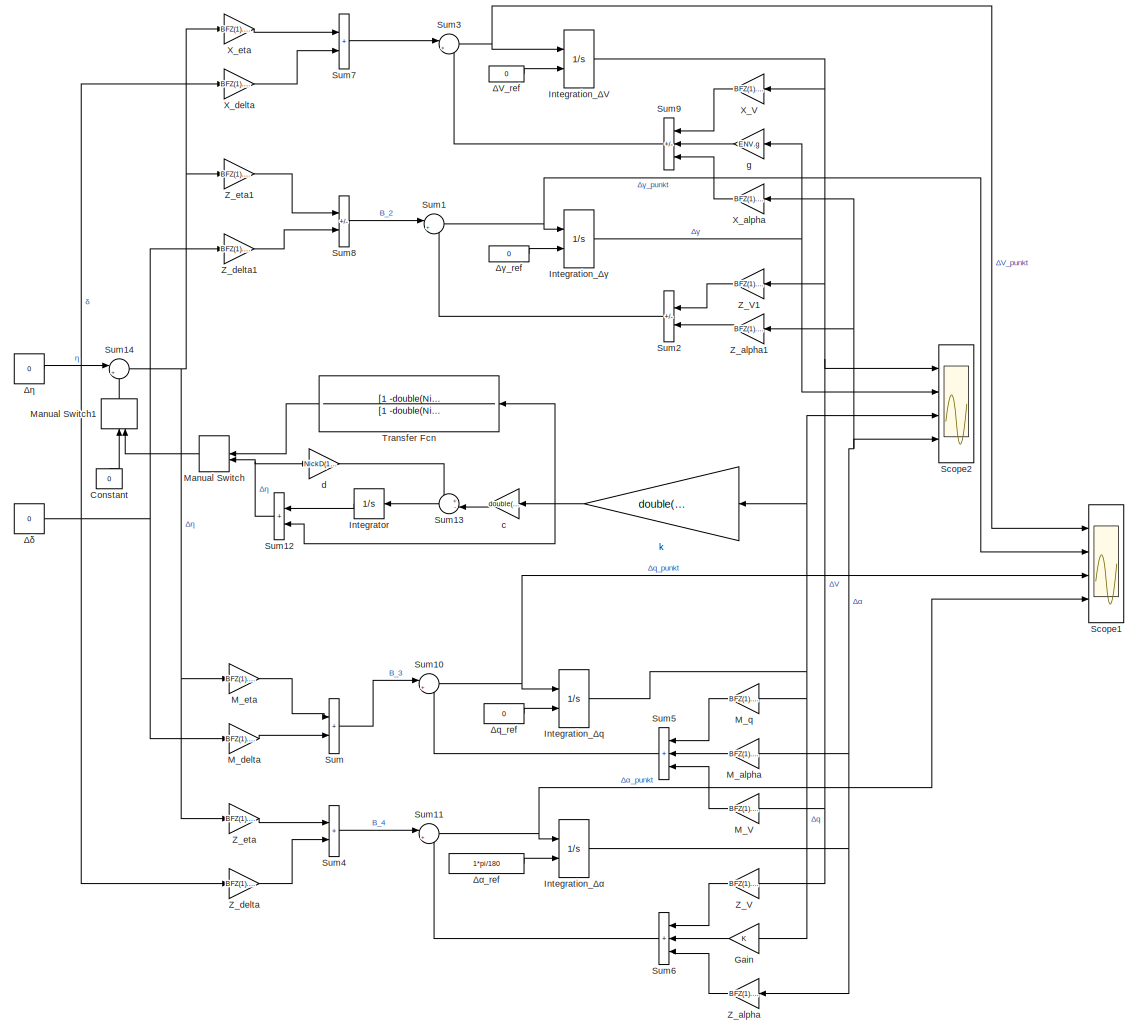
[diagram: root canvas - part 1/1, most of the canvas]
MODEL slx_b7205c3fbfae
KIND model
CONFIG AbsTol = auto
CONFIG EnableMultiTasking = off
CONFIG FixedStep = 0.02
CONFIG MaxStep = auto
CONFIG MinStep = auto
CONFIG RelTol = 1e-3
CONFIG SampleTimeConstraint = Unconstrained
CONFIG SolverName = ode4
CONFIG StartTime = 0.0
CONFIG StopTime = 50
BLOCK [Constant] Constant
  NameLocation = right
  Value = 0
BLOCK [Gain] Gain
BLOCK [Integrator] Integration_ΔV
  InitialConditionSource = external
  Ports = [2, 1]
BLOCK [Integrator] Integration_Δq
  InitialConditionSource = external
  Ports = [2, 1]
BLOCK [Integrator] Integration_Δα
  InitialConditionSource = external
  Ports = [2, 1]
BLOCK [Integrator] Integration_Δγ
  InitialConditionSource = external
  Ports = [2, 1]
BLOCK [Integrator] Integrator
  Ports = [1, 1]
BLOCK [Gain] M_V
  Gain = BFZ(1).M_V
BLOCK [Gain] M_alpha
  Gain = BFZ(1).M_alpha
BLOCK [Gain] M_delta
  Gain = BFZ(1).M_delta
BLOCK [Gain] M_eta
  Gain = BFZ(1).M_eta
BLOCK [Gain] M_q
  Gain = BFZ(1).M_q
BLOCK [ManualSwitch] Manual Switch
  CurrentSetting = 0
  NameLocation = top
BLOCK [ManualSwitch] Manual Switch1
  NameLocation = right
BLOCK [Scope] Scope1
  Floating = off
  NumInputPorts = 4
  Ports = [4]
  ScopeSpecificationString = Simulink.scopes.TimeScopeBlockCfg('CurrentConfiguration', extmgr.ConfigurationSet(extmgr.Configuration('Core','General UI',true),extmgr.Configuration('Core','Source UI',true),extmgr.Configuration('Sources','WiredSimulink',true,'DataLoggingVariableName','ScopeData2'),extmgr.Configuration('Visuals','Time Domain',true,'SerializedDisplays',{struct('MinYLimReal','-0.09311','MaxYLimReal','0.07676','YLab...<+1589ch>
BLOCK [Scope] Scope2
  Floating = off
  NumInputPorts = 4
  Ports = [4]
  ScopeSpecificationString = Simulink.scopes.TimeScopeBlockCfg('CurrentConfiguration', extmgr.ConfigurationSet(extmgr.Configuration('Core','General UI',true),extmgr.Configuration('Core','Source UI',true),extmgr.Configuration('Sources','WiredSimulink',true),extmgr.Configuration('Visuals','Time Domain',true,'SerializedDisplays',{struct('MinYLimReal','-0.01451','MaxYLimReal','0.021','YLabelReal','','MinYLimMag','0.00000','MaxYLi...<+1517ch>
BLOCK [Sum] Sum
  IconShape = rectangular
  Ports = [2, 1]
BLOCK [Sum] Sum1
  Inputs = |++
  Ports = [2, 1]
BLOCK [Sum] Sum10
  Inputs = |++
  Ports = [2, 1]
BLOCK [Sum] Sum11
  Inputs = |++
  Ports = [2, 1]
BLOCK [Sum] Sum12
  IconShape = rectangular
  Ports = [2, 1]
BLOCK [Sum] Sum13
  Inputs = +-|
  Ports = [2, 1]
BLOCK [Sum] Sum14
  Inputs = |+-
  Ports = [2, 1]
BLOCK [Sum] Sum2
  IconShape = rectangular
  Inputs = --
  Ports = [2, 1]
BLOCK [Sum] Sum3
  Inputs = |++
  Ports = [2, 1]
BLOCK [Sum] Sum4
  IconShape = rectangular
  Ports = [2, 1]
BLOCK [Sum] Sum5
  IconShape = rectangular
  Inputs = +++
  Ports = [3, 1]
BLOCK [Sum] Sum6
  IconShape = rectangular
  Inputs = +++
  Ports = [3, 1]
BLOCK [Sum] Sum7
  IconShape = rectangular
  Ports = [2, 1]
BLOCK [Sum] Sum8
  IconShape = rectangular
  Inputs = --
  Ports = [2, 1]
BLOCK [Sum] Sum9
  IconShape = rectangular
  Inputs = +-+
  Ports = [3, 1]
BLOCK [TransferFcn] Transfer Fcn
  Denominator = [1 -double(NickD(1).Lag.d)]
  NameLocation = top
  Numerator = [1 -double(NickD(1).Lag.c)]
BLOCK [Gain] X_V
  Gain = BFZ(1).X_V
BLOCK [Gain] X_alpha
  Gain = BFZ(1).X_alpha
BLOCK [Gain] X_delta
  Gain = BFZ(1).X_delta
BLOCK [Gain] X_eta
  Gain = BFZ(1).X_eta
BLOCK [Gain] Z_V
  Gain = BFZ(1).Z_V
BLOCK [Gain] Z_V1
  Gain = BFZ(1).Z_V
BLOCK [Gain] Z_alpha
  Gain = BFZ(1).Z_alpha
BLOCK [Gain] Z_alpha1
  Gain = BFZ(1).Z_alpha
BLOCK [Gain] Z_delta
  Gain = BFZ(1).Z_delta
BLOCK [Gain] Z_delta1
  Gain = BFZ(1).Z_delta
BLOCK [Gain] Z_eta
  Gain = BFZ(1).Z_eta
BLOCK [Gain] Z_eta1
  Gain = BFZ(1).Z_eta
BLOCK [Gain] c
  Gain = double(NickD(1).Lag.c)
BLOCK [Gain] d
  Gain = NickD(1).Lag.d
BLOCK [Gain] g
  Gain = ENV.g
BLOCK [Gain] k
  Gain = double(NickD(1).Lag.k)
BLOCK [Constant] ΔV_ref
  Value = 0
BLOCK [Constant] Δq_ref
  Value = 0
BLOCK [Constant] Δα_ref
  Value = 1*pi/180
BLOCK [Constant] Δγ_ref
  Value = 0
BLOCK [Constant] Δδ
  Value = 0
BLOCK [Constant] Δη
  Value = 0
LINE Constant:1 -> Manual Switch1:1
LINE Gain:1 -> Sum6:2
NET Integration_ΔV:1 -> M_V:1, Scope2:1, X_V:1, Z_V1:1, Z_V:1
NET Integration_Δq:1 -> Gain:1, M_q:1, Scope2:3, k:1
NET Integration_Δα:1 -> M_alpha:1, Scope2:4, X_alpha:1, Z_alpha1:1, Z_alpha:1
NET Integration_Δγ:1 -> Scope2:2, g:1
LINE Integrator:1 -> Sum12:1
LINE M_V:1 -> Sum5:3
LINE M_alpha:1 -> Sum5:2
LINE M_delta:1 -> Sum:2
LINE M_eta:1 -> Sum:1
LINE M_q:1 -> Sum5:1
LINE Manual Switch1:1 -> Sum14:2
LINE Manual Switch:1 -> Manual Switch1:2
NET Sum10:1 -> Integration_Δq:1, Scope1:3
NET Sum11:1 -> Integration_Δα:1, Scope1:4
NET Sum12:1 -> Manual Switch:2, d:1
LINE Sum13:1 -> Integrator:1
NET Sum14:1 -> M_eta:1, X_eta:1, Z_eta1:1, Z_eta:1
NET Sum1:1 -> Integration_Δγ:1, Scope1:2
LINE Sum2:1 -> Sum1:2
NET Sum3:1 -> Integration_ΔV:1, Scope1:1
LINE Sum4:1 -> Sum11:1
LINE Sum5:1 -> Sum10:2
LINE Sum6:1 -> Sum11:2
LINE Sum7:1 -> Sum3:1
LINE Sum8:1 -> Sum1:1
LINE Sum9:1 -> Sum3:2
LINE Sum:1 -> Sum10:1
LINE Transfer Fcn:1 -> Manual Switch:1
LINE X_V:1 -> Sum9:1
LINE X_alpha:1 -> Sum9:3
LINE X_delta:1 -> Sum7:2
LINE X_eta:1 -> Sum7:1
LINE Z_V1:1 -> Sum2:1
LINE Z_V:1 -> Sum6:1
LINE Z_alpha1:1 -> Sum2:2
LINE Z_alpha:1 -> Sum6:3
LINE Z_delta1:1 -> Sum8:2
LINE Z_delta:1 -> Sum4:2
LINE Z_eta1:1 -> Sum8:1
LINE Z_eta:1 -> Sum4:1
LINE c:1 -> Sum13:2
LINE d:1 -> Sum13:1
LINE g:1 -> Sum9:2
NET k:1 -> Sum12:2, Transfer Fcn:1, c:1
LINE ΔV_ref:1 -> Integration_ΔV:2
LINE Δq_ref:1 -> Integration_Δq:2
LINE Δα_ref:1 -> Integration_Δα:2
LINE Δγ_ref:1 -> Integration_Δγ:2
NET Δδ:1 -> M_delta:1, X_delta:1, Z_delta1:1, Z_delta:1
LINE Δη:1 -> Sum14:1
note: NET lines group one-source signal fan-out (src -> all destinations, sorted); 1:1 wires keep LINE
